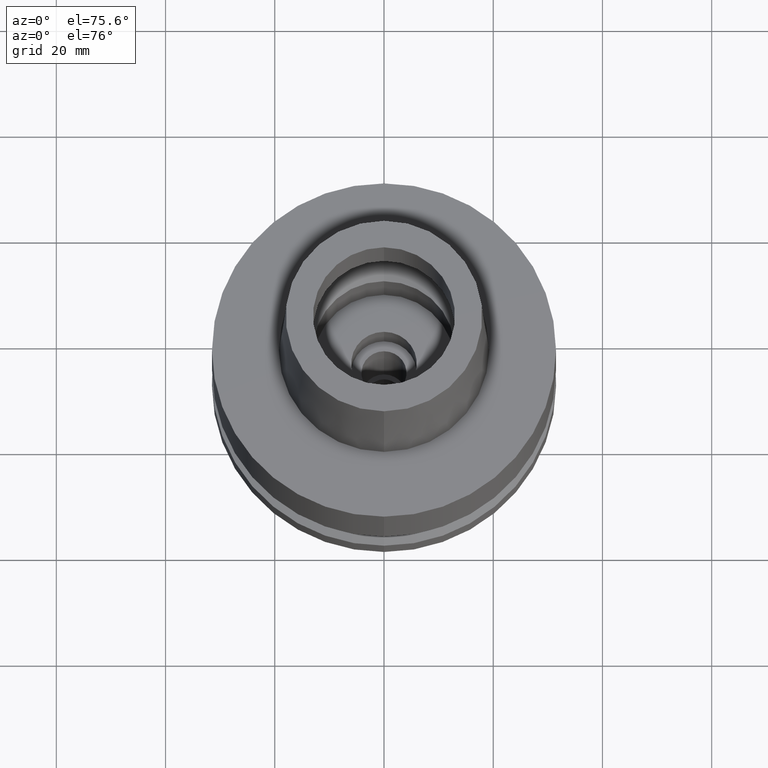
[diagram: clean part render]
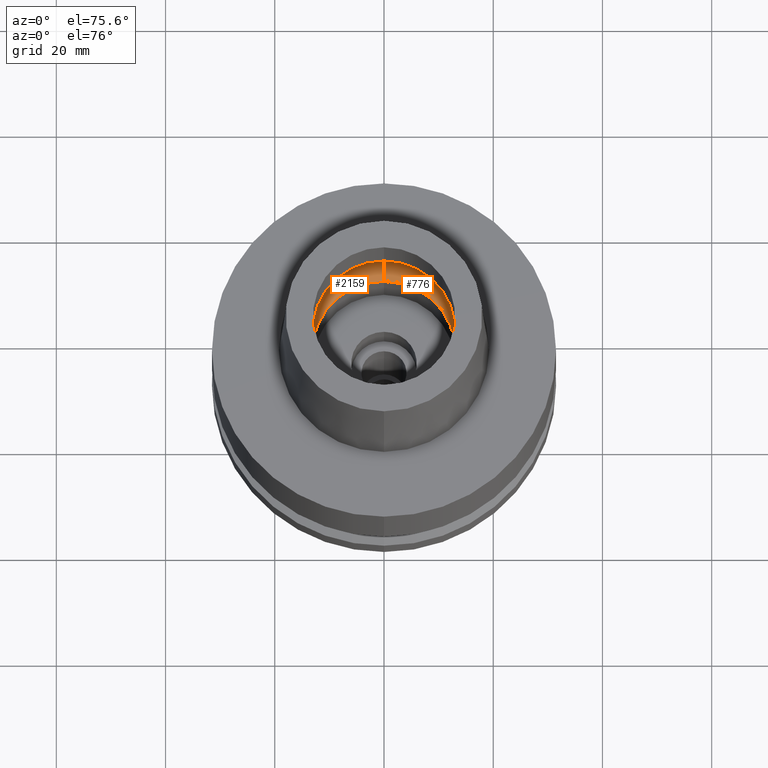
[diagram: same view with one multi-face feature highlighted, each face labeled with its STEP entity id]
A machine part, auxiliary view. The highlighted faces form ONE feature: a constant-radius fillet chain: 2 tangent blend faces with common blend radius 6 mm. The faces share edges in the B-rep.
Their STEP definitions:
[1] entity #776 (Torus):
#2 = ORIENTED_EDGE ( 'NONE', *, *, #164, .F. ) ;
#13 = DIRECTION ( 'NONE',  ( 0.0000000000000000000, 1.000000000000000000, 0.0000000000000000000 ) ) ;
#36 = CIRCLE ( 'NONE', #1136, 6.000000000000000000 ) ;
#67 = FACE_OUTER_BOUND ( 'NONE', #2302, .T. ) ;
#113 = AXIS2_PLACEMENT_3D ( 'NONE', #593, #146, #780 ) ;
#129 = DIRECTION ( 'NONE',  ( 1.000000000000000000, 0.0000000000000000000, 0.0000000000000000000 ) ) ;
#146 = DIRECTION ( 'NONE',  ( 0.0000000000000000000, 0.0000000000000000000, -1.000000000000000000 ) ) ;
#164 = EDGE_CURVE ( 'NONE', #1766, #2223, #36, .T. ) ;
#253 = ORIENTED_EDGE ( 'NONE', *, *, #1448, .T. ) ;
#341 = CIRCLE ( 'NONE', #428, 13.00000000000000000 ) ;
#368 = ORIENTED_EDGE ( 'NONE', *, *, #2435, .F. ) ;
#428 = AXIS2_PLACEMENT_3D ( 'NONE', #936, #1416, #1802 ) ;
#553 = VERTEX_POINT ( 'NONE', #1375 ) ;
#593 = CARTESIAN_POINT ( 'NONE',  ( 0.0000000000000000000, 0.0000000000000000000, 5.245999999999999552 ) ) ;
#603 = AXIS2_PLACEMENT_3D ( 'NONE', #1357, #697, #13 ) ;
#697 = DIRECTION ( 'NONE',  ( 0.0000000000000000000, 0.0000000000000000000, 1.000000000000000000 ) ) ;
#776 = ADVANCED_FACE ( 'NONE', ( #67 ), #1919, .F. ) ;
#780 = DIRECTION ( 'NONE',  ( 0.0000000000000000000, 1.000000000000000000, 0.0000000000000000000 ) ) ;
#936 = CARTESIAN_POINT ( 'NONE',  ( 0.0000000000000000000, 0.0000000000000000000, 0.04984757729338000487 ) ) ;
#948 = CIRCLE ( 'NONE', #1317, 6.000000000000000000 ) ;
#993 = CARTESIAN_POINT ( 'NONE',  ( 0.0000000000000000000, 10.00000000000000000, 5.245999999999999552 ) ) ;
#1136 = AXIS2_PLACEMENT_3D ( 'NONE', #993, #129, #2052 ) ;
#1317 = AXIS2_PLACEMENT_3D ( 'NONE', #1353, #2039, #1827 ) ;
#1353 = CARTESIAN_POINT ( 'NONE',  ( 0.0000000000000000000, -10.00000000000000000, 5.245999999999999552 ) ) ;
#1357 = CARTESIAN_POINT ( 'NONE',  ( 0.0000000000000000000, 0.0000000000000000000, 5.245999999999999552 ) ) ;
#1375 = CARTESIAN_POINT ( 'NONE',  ( 0.0000000000000000000, -13.00000000000000000, 0.04984757729338000487 ) ) ;
#1416 = DIRECTION ( 'NONE',  ( 0.0000000000000000000, 0.0000000000000000000, 1.000000000000000000 ) ) ;
#1448 = EDGE_CURVE ( 'NONE', #553, #2298, #948, .T. ) ;
#1518 = CARTESIAN_POINT ( 'NONE',  ( 0.0000000000000000000, 13.00000000000000000, 0.04984757729338000487 ) ) ;
#1678 = CARTESIAN_POINT ( 'NONE',  ( 0.0000000000000000000, 16.00000000000000000, 5.245999999999999552 ) ) ;
#1766 = VERTEX_POINT ( 'NONE', #1518 ) ;
#1802 = DIRECTION ( 'NONE',  ( 0.0000000000000000000, -1.000000000000000000, 0.0000000000000000000 ) ) ;
#1827 = DIRECTION ( 'NONE',  ( 0.0000000000000000000, -0.5000000000000169864, -0.8660254037844289376 ) ) ;
#1919 = TOROIDAL_SURFACE ( 'NONE', #603, 10.00000000000000000, 6.000000000000000000 ) ;
#1931 = CARTESIAN_POINT ( 'NONE',  ( 0.0000000000000000000, -16.00000000000000000, 5.245999999999999552 ) ) ;
#2039 = DIRECTION ( 'NONE',  ( -1.000000000000000000, 0.0000000000000000000, 0.0000000000000000000 ) ) ;
#2052 = DIRECTION ( 'NONE',  ( 0.0000000000000000000, 0.5000000000000169864, -0.8660254037844289376 ) ) ;
#2223 = VERTEX_POINT ( 'NONE', #1678 ) ;
#2298 = VERTEX_POINT ( 'NONE', #1931 ) ;
#2302 = EDGE_LOOP ( 'NONE', ( #368, #253, #2561, #2 ) ) ;
#2435 = EDGE_CURVE ( 'NONE', #553, #1766, #341, .T. ) ;
#2561 = ORIENTED_EDGE ( 'NONE', *, *, #2741, .F. ) ;
#2741 = EDGE_CURVE ( 'NONE', #2223, #2298, #2785, .T. ) ;
#2785 = CIRCLE ( 'NONE', #113, 16.00000000000000000 ) ;
[2] entity #2159 (Torus):
#25 = ORIENTED_EDGE ( 'NONE', *, *, #164, .T. ) ;
#36 = CIRCLE ( 'NONE', #1136, 6.000000000000000000 ) ;
#56 = DIRECTION ( 'NONE',  ( 0.0000000000000000000, -1.000000000000000000, 0.0000000000000000000 ) ) ;
#68 = CIRCLE ( 'NONE', #2111, 13.00000000000000000 ) ;
#129 = DIRECTION ( 'NONE',  ( 1.000000000000000000, 0.0000000000000000000, 0.0000000000000000000 ) ) ;
#164 = EDGE_CURVE ( 'NONE', #1766, #2223, #36, .T. ) ;
#176 = DIRECTION ( 'NONE',  ( 0.0000000000000000000, 0.0000000000000000000, 1.000000000000000000 ) ) ;
#548 = EDGE_CURVE ( 'NONE', #2298, #2223, #2203, .T. ) ;
#553 = VERTEX_POINT ( 'NONE', #1375 ) ;
#732 = CARTESIAN_POINT ( 'NONE',  ( 0.0000000000000000000, 0.0000000000000000000, 5.245999999999999552 ) ) ;
#739 = ORIENTED_EDGE ( 'NONE', *, *, #1448, .F. ) ;
#921 = ORIENTED_EDGE ( 'NONE', *, *, #2701, .F. ) ;
#937 = AXIS2_PLACEMENT_3D ( 'NONE', #1241, #2075, #2503 ) ;
#948 = CIRCLE ( 'NONE', #1317, 6.000000000000000000 ) ;
#993 = CARTESIAN_POINT ( 'NONE',  ( 0.0000000000000000000, 10.00000000000000000, 5.245999999999999552 ) ) ;
#1136 = AXIS2_PLACEMENT_3D ( 'NONE', #993, #129, #2052 ) ;
#1169 = TOROIDAL_SURFACE ( 'NONE', #937, 10.00000000000000000, 6.000000000000000000 ) ;
#1241 = CARTESIAN_POINT ( 'NONE',  ( 0.0000000000000000000, 0.0000000000000000000, 5.245999999999999552 ) ) ;
#1317 = AXIS2_PLACEMENT_3D ( 'NONE', #1353, #2039, #1827 ) ;
#1353 = CARTESIAN_POINT ( 'NONE',  ( 0.0000000000000000000, -10.00000000000000000, 5.245999999999999552 ) ) ;
#1375 = CARTESIAN_POINT ( 'NONE',  ( 0.0000000000000000000, -13.00000000000000000, 0.04984757729338000487 ) ) ;
#1448 = EDGE_CURVE ( 'NONE', #553, #2298, #948, .T. ) ;
#1518 = CARTESIAN_POINT ( 'NONE',  ( 0.0000000000000000000, 13.00000000000000000, 0.04984757729338000487 ) ) ;
#1678 = CARTESIAN_POINT ( 'NONE',  ( 0.0000000000000000000, 16.00000000000000000, 5.245999999999999552 ) ) ;
#1766 = VERTEX_POINT ( 'NONE', #1518 ) ;
#1827 = DIRECTION ( 'NONE',  ( 0.0000000000000000000, -0.5000000000000169864, -0.8660254037844289376 ) ) ;
#1931 = CARTESIAN_POINT ( 'NONE',  ( 0.0000000000000000000, -16.00000000000000000, 5.245999999999999552 ) ) ;
#2039 = DIRECTION ( 'NONE',  ( -1.000000000000000000, 0.0000000000000000000, 0.0000000000000000000 ) ) ;
#2052 = DIRECTION ( 'NONE',  ( 0.0000000000000000000, 0.5000000000000169864, -0.8660254037844289376 ) ) ;
#2075 = DIRECTION ( 'NONE',  ( 0.0000000000000000000, 0.0000000000000000000, 1.000000000000000000 ) ) ;
#2111 = AXIS2_PLACEMENT_3D ( 'NONE', #2278, #176, #2726 ) ;
#2159 = ADVANCED_FACE ( 'NONE', ( #2730 ), #1169, .F. ) ;
#2203 = CIRCLE ( 'NONE', #2297, 16.00000000000000000 ) ;
#2223 = VERTEX_POINT ( 'NONE', #1678 ) ;
#2278 = CARTESIAN_POINT ( 'NONE',  ( 0.0000000000000000000, 0.0000000000000000000, 0.04984757729338000487 ) ) ;
#2297 = AXIS2_PLACEMENT_3D ( 'NONE', #732, #2424, #56 ) ;
#2298 = VERTEX_POINT ( 'NONE', #1931 ) ;
#2366 = ORIENTED_EDGE ( 'NONE', *, *, #548, .F. ) ;
#2424 = DIRECTION ( 'NONE',  ( 0.0000000000000000000, 0.0000000000000000000, -1.000000000000000000 ) ) ;
#2431 = EDGE_LOOP ( 'NONE', ( #2366, #739, #921, #25 ) ) ;
#2503 = DIRECTION ( 'NONE',  ( 0.0000000000000000000, 1.000000000000000000, 0.0000000000000000000 ) ) ;
#2701 = EDGE_CURVE ( 'NONE', #1766, #553, #68, .T. ) ;
#2726 = DIRECTION ( 'NONE',  ( 0.0000000000000000000, 1.000000000000000000, 0.0000000000000000000 ) ) ;
#2730 = FACE_OUTER_BOUND ( 'NONE', #2431, .T. ) ;